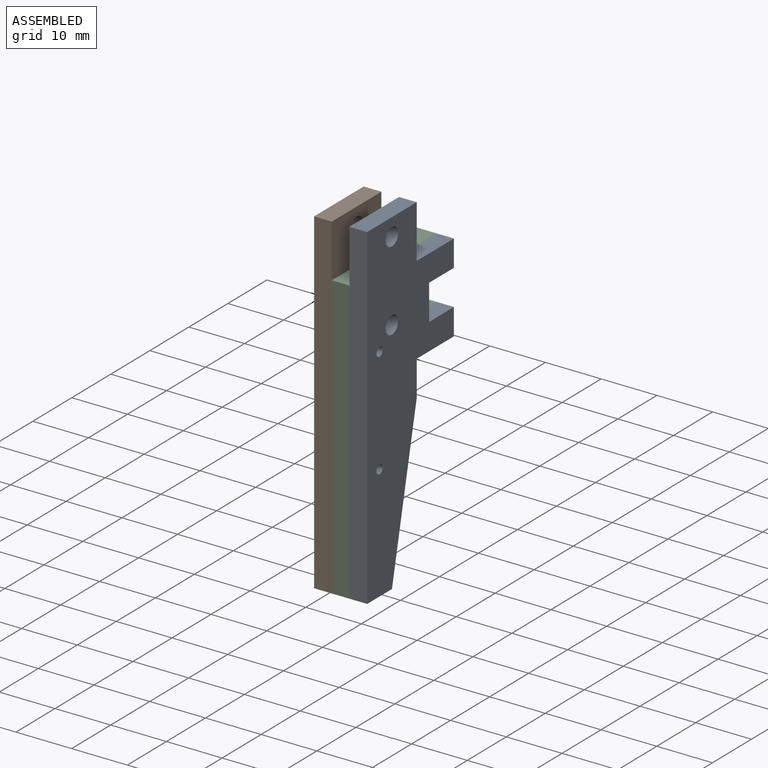
[diagram: assembled view]
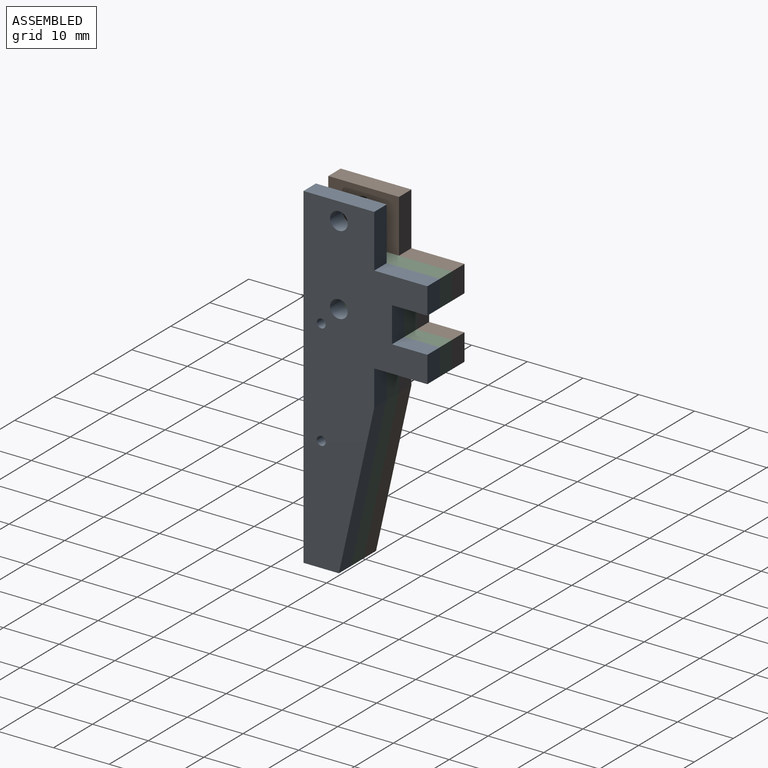
[diagram: assembled view, second angle]
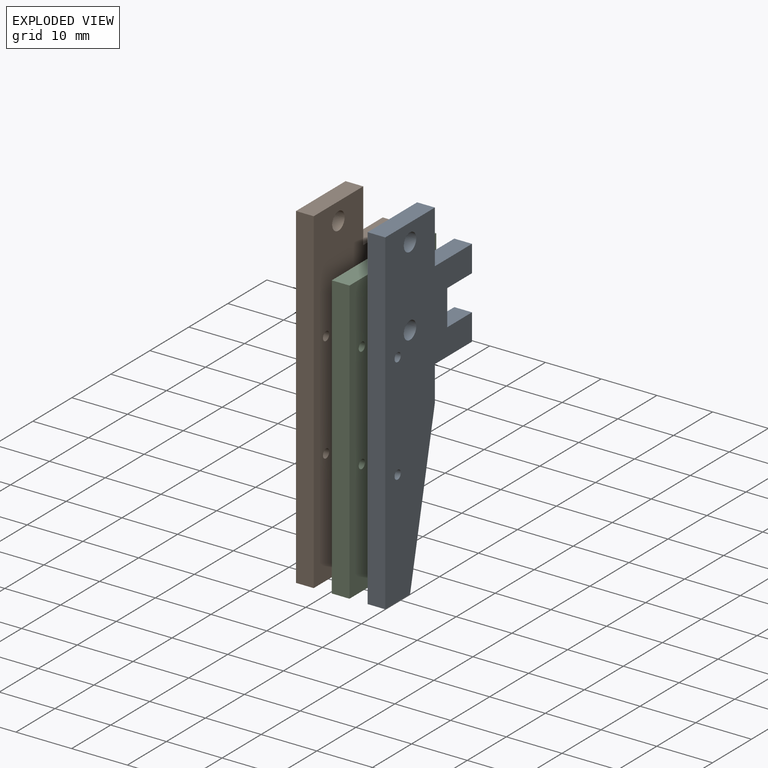
[diagram: exploded view]
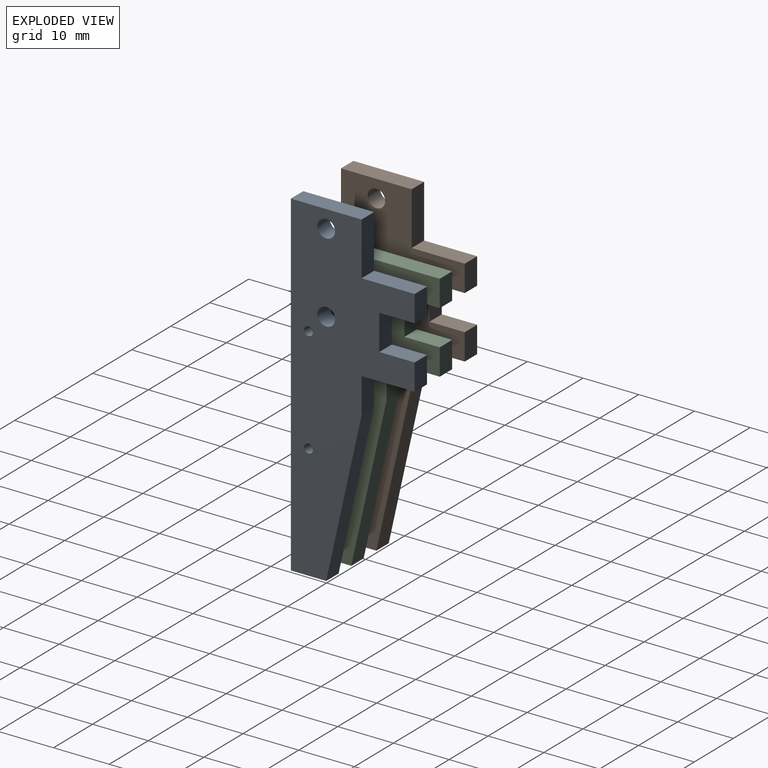
[diagram: exploded view, second angle]
ASSEMBLY  parts=3 mates=2
PART A: 19 faces, bbox 3.2x22.2x60.3 mm
  f0: plane 9.53x3.18mm, normal (0,0,-1), area 30.2mm2, adj f1,f12,f13,f14
  f1: plane 4.76x3.18mm, normal (0,1,0), area 15.1mm2, adj f0,f2,f13,f14
  f2: plane 6.35x3.18mm, normal (0,0,1), area 20.2mm2, adj f1,f3,f13,f14
  f3: plane 6.35x3.18mm, normal (0,1,0), area 20.2mm2, adj f2,f4,f13,f14
  f4: plane 6.35x3.18mm, normal (0,0,-1), area 20.2mm2, adj f3,f5,f13,f14
  f5: plane 4.76x3.18mm, normal (0,1,0), area 15.1mm2, adj f4,f6,f13,f14
  f6: plane 9.53x3.18mm, normal (0,0,1), area 30.2mm2, adj f5,f7,f13,f14
  f7: plane 9.53x3.18mm, normal (0,1,0), area 30.2mm2, adj f6,f8,f13,f14
  f8: plane 12.7x3.18mm, normal (0,0,1), area 40.3mm2, adj f7,f9,f13,f14
  f9: plane 60.33x3.18mm, normal (0,-1,0), area 191.5mm2, adj f8,f10,f13,f14
  f10: plane 6.35x3.18mm, normal (0,0,-1), area 20.2mm2, adj f9,f11,f13,f14
  f11: plane 28.58x6.35mm, normal (0,0.98,-0.22), area 92.9mm2, adj f10,f12,f13,f14
  f12: plane 6.35x3.18mm, normal (0,1,0), area 20.2mm2, adj f0,f11,f13,f14
  f13: plane 60.33x22.23mm, normal (1,0,0), area 766.5mm2, adj f0,f1,f2,f3,f4,f5,f6,f7
  f14: plane 60.33x22.23mm, normal (-1,0,0), area 766.5mm2, adj f0,f1,f2,f3,f4,f5,f6,f7
  f15: cylinder r=1.59mm len=3.18mm, axis (1,0,0), area 31.7mm2, adj f13,f14
  f16: cylinder r=0.79mm len=3.18mm, axis (1,0,0), area 15.8mm2, adj f13,f14
  f17: cylinder r=0.79mm len=3.18mm, axis (1,0,0), area 15.8mm2, adj f13,f14
  f18: cylinder r=1.59mm len=3.18mm, axis (1,0,0), area 31.7mm2, adj f13,f14
PART B: same geometry as A
PART C: 16 faces, bbox 3.2x22.2x50.8 mm
  f0: plane 6.35x3.18mm, normal (0,0,-1), area 20.2mm2, adj f1,f10,f11,f12
  f1: plane 4.76x3.18mm, normal (0,1,0), area 15.1mm2, adj f0,f2,f11,f12
  f2: plane 22.23x3.18mm, normal (0,0,1), area 70.6mm2, adj f1,f3,f11,f12
  f3: plane 50.8x3.18mm, normal (0,-1,0), area 161.3mm2, adj f2,f4,f11,f12
  f4: plane 6.35x3.18mm, normal (0,0,-1), area 20.2mm2, adj f3,f5,f11,f12
  f5: plane 28.58x6.35mm, normal (0,0.98,-0.22), area 92.9mm2, adj f4,f6,f11,f12
  f6: plane 6.35x3.18mm, normal (0,1,0), area 20.2mm2, adj f5,f7,f11,f12
  f7: plane 9.53x3.18mm, normal (0,0,-1), area 30.2mm2, adj f6,f8,f11,f12
  f8: plane 4.76x3.18mm, normal (0,1,0), area 15.1mm2, adj f7,f9,f11,f12
  f9: plane 6.35x3.18mm, normal (0,0,1), area 20.2mm2, adj f8,f10,f11,f12
  f10: plane 6.35x3.18mm, normal (0,1,0), area 20.2mm2, adj f0,f9,f11,f12
  f11: plane 50.8x22.23mm, normal (1,0,0), area 653.4mm2, adj f0,f1,f2,f3,f4,f5,f6,f7
  f12: plane 50.8x22.23mm, normal (-1,0,0), area 653.4mm2, adj f0,f1,f2,f3,f4,f5,f6,f7
  f13: cylinder r=0.79mm len=3.18mm, axis (1,0,0), area 15.8mm2, adj f11,f12
  f14: cylinder r=0.79mm len=3.18mm, axis (1,0,0), area 15.8mm2, adj f11,f12
  f15: cylinder r=1.59mm len=3.18mm, axis (1,0,0), area 31.7mm2, adj f11,f12
PLACE A t=(6.35,0,0)mm
PLACE B at identity fixed
PLACE C t=(3.18,0,0)mm
MATE fastened B.f17 <-> C.f13  axis (1,0,0) through (1.59,-32.41,69.38)mm
MATE fastened C.f13 <-> A.f17  axis (1,0,0) through (4.76,-32.41,69.38)mm
